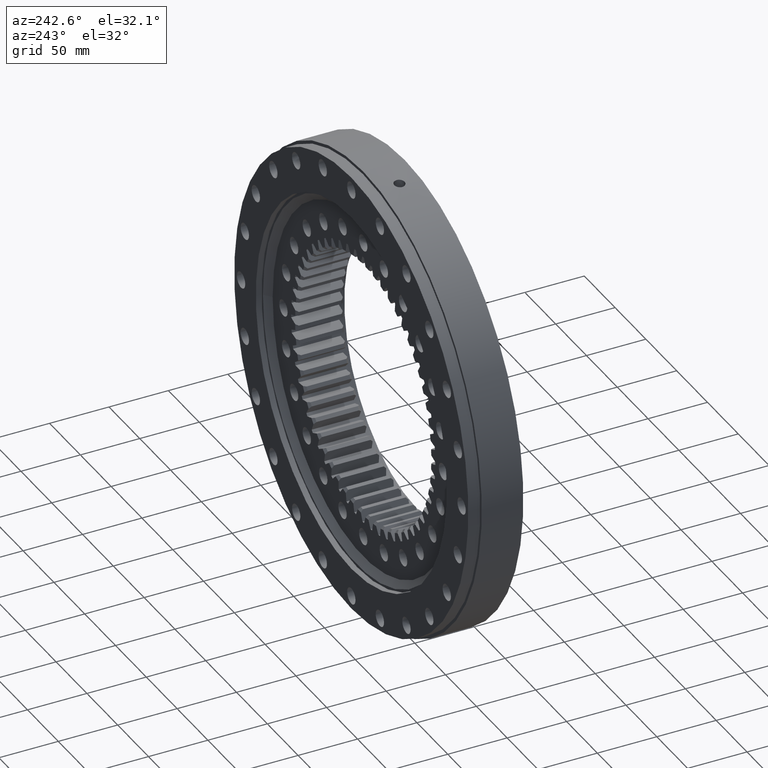
[diagram: clean part render]
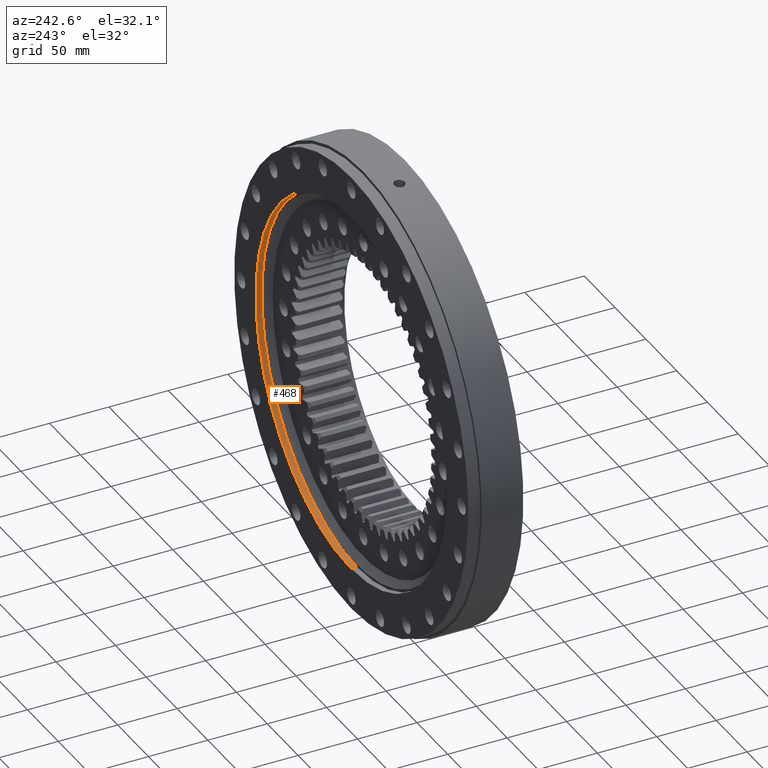
[diagram: same view with one face highlighted and labeled with its STEP entity id]
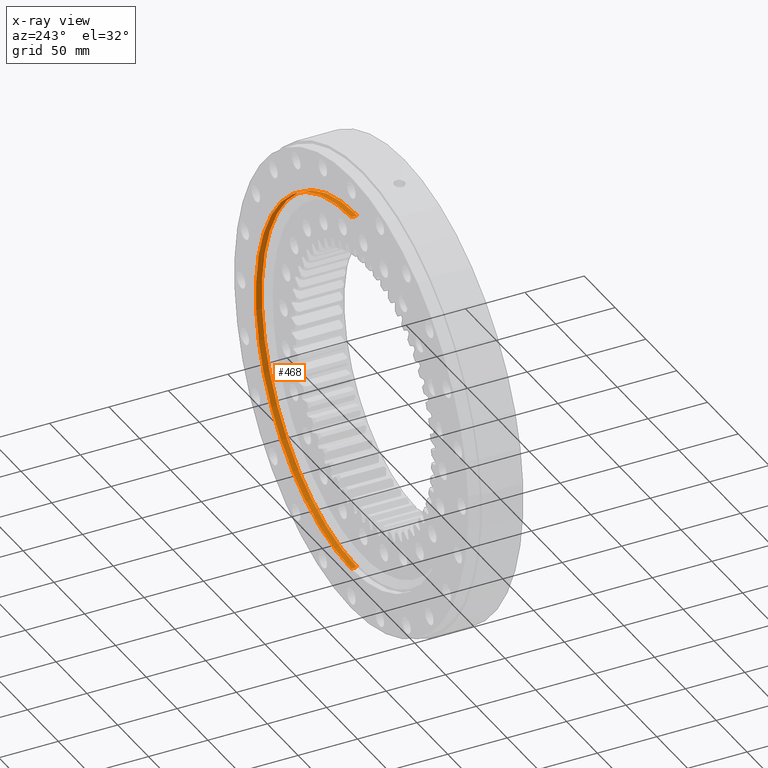
[diagram: x-ray of the same camera — body ghosted, the highlighted face saturated]
A machine part, auxiliary view. The second image highlights one B-rep face of the part: STEP entity #468.
The next image is the same camera in x-ray: the body ghosted, the highlighted face saturated — about 0% of this face is hidden behind the body in this view.
In plain terms, the highlighted cylindrical surface (partial cylindrical patch) has radius 155.012 mm, axis along (0, -1, -0).
Its self-contained STEP definition (entity closure, byte-faithful):
#468 = ADVANCED_FACE ( 'NONE', ( #1785 ), #12286, .F. ) ;
#859 = LINE ( 'NONE', #12308, #7851 ) ;
#1785 = FACE_OUTER_BOUND ( 'NONE', #10916, .T. ) ;
#3301 = EDGE_CURVE ( 'NONE', #8791, #7150, #7612, .T. ) ;
#3514 = ORIENTED_EDGE ( 'NONE', *, *, #15389, .T. ) ;
#4040 = CARTESIAN_POINT ( 'NONE',  ( 5.377254965488822600E-015, 27.50000000000001800, 155.0124999999999900 ) ) ;
#4346 = ORIENTED_EDGE ( 'NONE', *, *, #3301, .F. ) ;
#7150 = VERTEX_POINT ( 'NONE', #16784 ) ;
#7354 = DIRECTION ( 'NONE',  ( 5.551115123125782700E-017, -4.476344748912009900E-017, 1.000000000000000000 ) ) ;
#7612 = LINE ( 'NONE', #9861, #9674 ) ;
#7851 = VECTOR ( 'NONE', #9794, 1000.000000000000000 ) ;
#8741 = CARTESIAN_POINT ( 'NONE',  ( -2.646687239092155300E-015, 22.55000000000001500, 7.879460136394947300E-016 ) ) ;
#8791 = VERTEX_POINT ( 'NONE', #4040 ) ;
#8823 = DIRECTION ( 'NONE',  ( 1.173697223544192200E-016, -1.000000000000000000, -3.494217355385783800E-017 ) ) ;
#9070 = DIRECTION ( 'NONE',  ( 5.551115123125782700E-017, -4.476344748912009900E-017, 1.000000000000000000 ) ) ;
#9157 = ORIENTED_EDGE ( 'NONE', *, *, #14708, .F. ) ;
#9674 = VECTOR ( 'NONE', #15911, 1000.000000000000000 ) ;
#9794 = DIRECTION ( 'NONE',  ( 1.173697223544192200E-016, -1.000000000000000000, -3.494217355385783800E-017 ) ) ;
#9861 = CARTESIAN_POINT ( 'NONE',  ( 1.120626346524395900E-014, -22.16364734299517600, 155.0124999999999900 ) ) ;
#10916 = EDGE_LOOP ( 'NONE', ( #9157, #3514, #13335, #4346 ) ) ;
#10989 = AXIS2_PLACEMENT_3D ( 'NONE', #14935, #12017, #11955 ) ;
#11955 = DIRECTION ( 'NONE',  ( 5.551115123125782700E-017, -4.476344748912009900E-017, 1.000000000000000000 ) ) ;
#12017 = DIRECTION ( 'NONE',  ( 1.173697223544192200E-016, -1.000000000000000000, -3.494217355385783800E-017 ) ) ;
#12237 = VERTEX_POINT ( 'NONE', #17260 ) ;
#12286 = CYLINDRICAL_SURFACE ( 'NONE', #13933, 155.0124999999999900 ) ;
#12308 = CARTESIAN_POINT ( 'NONE',  ( -2.498713739050966000E-014, -22.16364734299516200, -155.0124999999999900 ) ) ;
#12347 = EDGE_CURVE ( 'NONE', #14407, #7150, #16534, .T. ) ;
#13114 = AXIS2_PLACEMENT_3D ( 'NONE', #8741, #8823, #9070 ) ;
#13335 = ORIENTED_EDGE ( 'NONE', *, *, #12347, .T. ) ;
#13933 = AXIS2_PLACEMENT_3D ( 'NONE', #15864, #16843, #7354 ) ;
#14407 = VERTEX_POINT ( 'NONE', #15124 ) ;
#14708 = EDGE_CURVE ( 'NONE', #12237, #8791, #17122, .T. ) ;
#14935 = CARTESIAN_POINT ( 'NONE',  ( -3.227667364746531400E-015, 27.50000000000002500, 9.609097727310913900E-016 ) ) ;
#15124 = CARTESIAN_POINT ( 'NONE',  ( -3.052565582743760100E-014, 22.55000000000002200, -155.0124999999999900 ) ) ;
#15389 = EDGE_CURVE ( 'NONE', #12237, #14407, #859, .T. ) ;
#15864 = CARTESIAN_POINT ( 'NONE',  ( 2.601341135008604100E-015, -22.16364734299516900, -7.744460120454373600E-016 ) ) ;
#15911 = DIRECTION ( 'NONE',  ( 1.173697223544192200E-016, -1.000000000000000000, -3.494217355385783800E-017 ) ) ;
#16534 = CIRCLE ( 'NONE', #13114, 155.0124999999999900 ) ;
#16784 = CARTESIAN_POINT ( 'NONE',  ( 5.958235091143198000E-015, 22.55000000000000800, 155.0124999999999900 ) ) ;
#16843 = DIRECTION ( 'NONE',  ( 1.173697223544192200E-016, -1.000000000000000000, -3.494217355385783800E-017 ) ) ;
#17122 = CIRCLE ( 'NONE', #10989, 155.0124999999999900 ) ;
#17260 = CARTESIAN_POINT ( 'NONE',  ( -3.052565582743760100E-014, 27.50000000000003200, -155.0124999999999900 ) ) ;